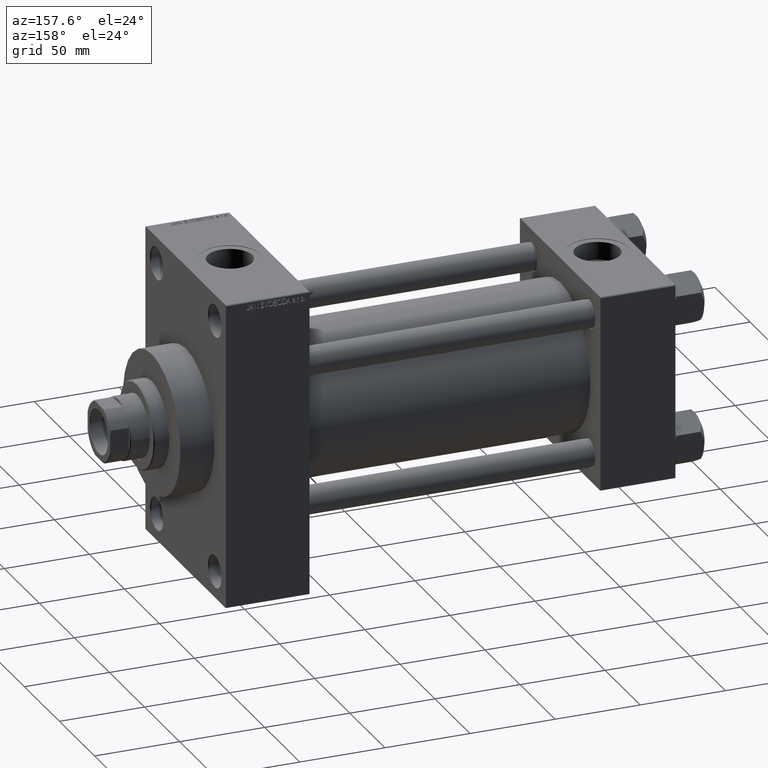
[diagram: clean part render]
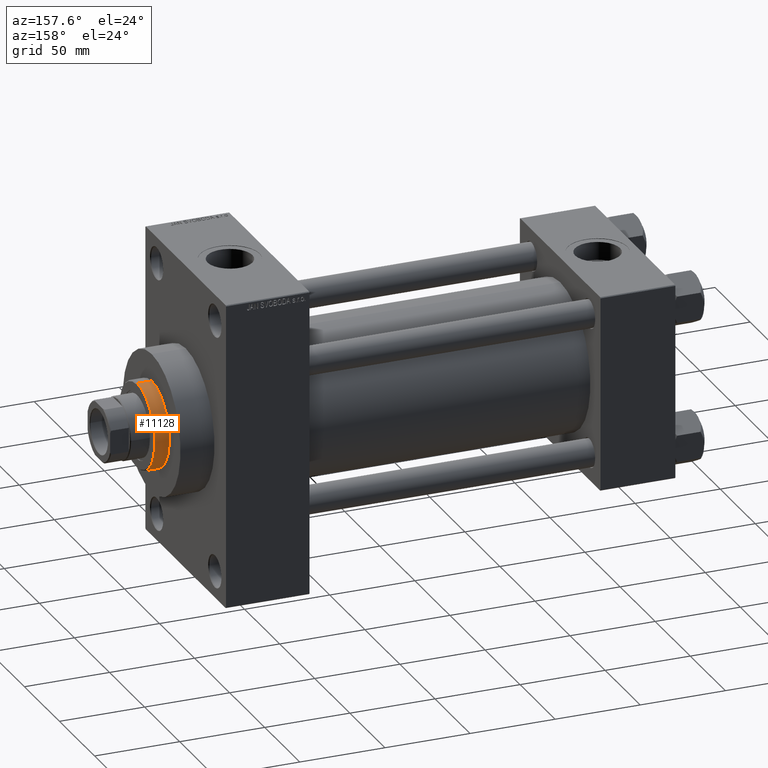
[diagram: same view with one face highlighted and labeled with its STEP entity id]
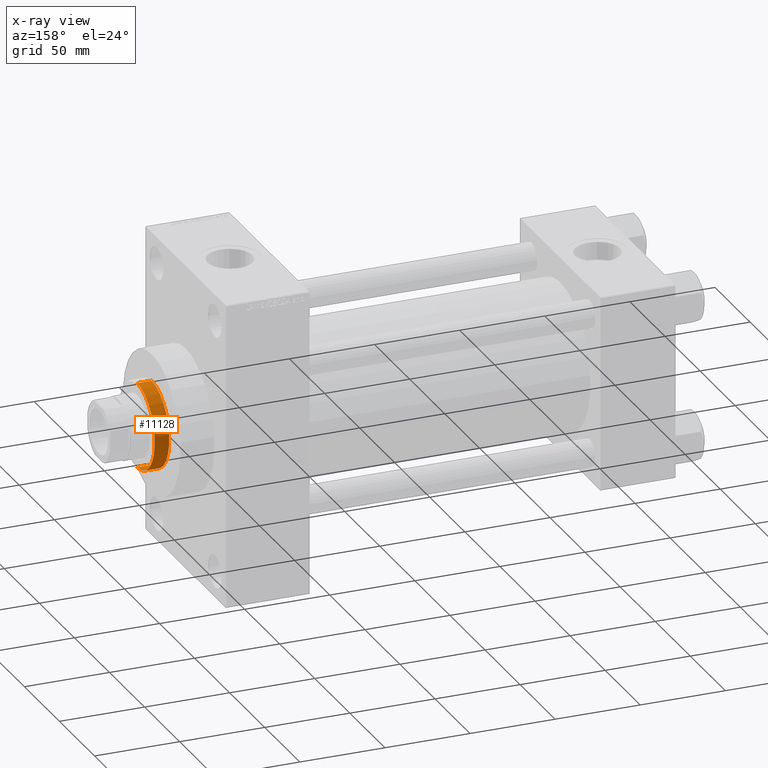
[diagram: x-ray of the same camera — body ghosted, the highlighted face saturated]
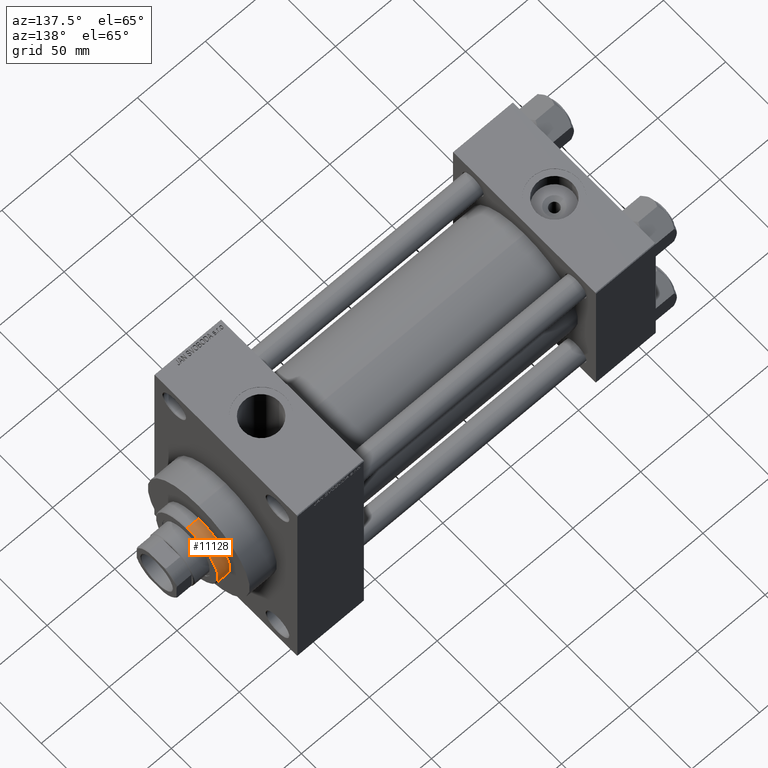
[diagram: same view with one face highlighted and labeled with its STEP entity id]
A machine part, auxiliary view. The second image highlights one B-rep face of the part: STEP entity #11128.
The next image is the same camera in x-ray: the body ghosted, the highlighted face saturated — about 0% of this face is hidden behind the body in this view.
A second angle (auxiliary view) of the same face is appended — the face is thin or edge-on in the first view.
In plain terms, the highlighted cylindrical surface (partial cylindrical patch) has radius 25 mm, axis along (-1, -0, 0).
Its self-contained STEP definition (entity closure, byte-faithful):
#588 = CIRCLE ( 'NONE', #20563, 25.00000000000000000 ) ;
#2933 = ORIENTED_EDGE ( 'NONE', *, *, #47333, .F. ) ;
#3210 = LINE ( 'NONE', #17908, #30436 ) ;
#6720 = ORIENTED_EDGE ( 'NONE', *, *, #29669, .T. ) ;
#8910 = DIRECTION ( 'NONE',  ( -1.000000000000000000, 0.000000000000000000, 0.000000000000000000 ) ) ;
#11128 = ADVANCED_FACE ( 'NONE', ( #34672 ), #16609, .T. ) ;
#13001 = CARTESIAN_POINT ( 'NONE',  ( 0.000000000000000000, 0.000000000000000000, 52.25999999999999801 ) ) ;
#14632 = VERTEX_POINT ( 'NONE', #21939 ) ;
#14867 = EDGE_CURVE ( 'NONE', #44598, #38715, #18652, .T. ) ;
#16609 = CYLINDRICAL_SURFACE ( 'NONE', #24834, 25.00000000000000000 ) ;
#17908 = CARTESIAN_POINT ( 'NONE',  ( 25.00000000000000000, 3.061616997868383043E-15, 52.25999999999999801 ) ) ;
#18478 = CARTESIAN_POINT ( 'NONE',  ( 0.000000000000000000, 0.000000000000000000, 51.75999999999996959 ) ) ;
#18652 = CIRCLE ( 'NONE', #45583, 25.00000000000000000 ) ;
#18739 = DIRECTION ( 'NONE',  ( 1.000000000000000000, 0.000000000000000000, 0.000000000000000000 ) ) ;
#20563 = AXIS2_PLACEMENT_3D ( 'NONE', #18478, #28833, #25236 ) ;
#21939 = CARTESIAN_POINT ( 'NONE',  ( 25.00000000000000000, 3.061616997868383043E-15, 51.75999999999996959 ) ) ;
#22558 = EDGE_CURVE ( 'NONE', #14632, #44598, #3210, .T. ) ;
#23577 = VECTOR ( 'NONE', #43885, 1000.000000000000000 ) ;
#24834 = AXIS2_PLACEMENT_3D ( 'NONE', #13001, #31298, #8910 ) ;
#25236 = DIRECTION ( 'NONE',  ( 1.000000000000000000, 0.000000000000000000, 0.000000000000000000 ) ) ;
#25568 = ORIENTED_EDGE ( 'NONE', *, *, #14867, .T. ) ;
#27088 = CARTESIAN_POINT ( 'NONE',  ( -25.00000000000000000, 0.000000000000000000, 51.75999999999996959 ) ) ;
#27688 = ORIENTED_EDGE ( 'NONE', *, *, #22558, .T. ) ;
#28833 = DIRECTION ( 'NONE',  ( 0.000000000000000000, 0.000000000000000000, -1.000000000000000000 ) ) ;
#29104 = DIRECTION ( 'NONE',  ( 0.000000000000000000, 0.000000000000000000, 1.000000000000000000 ) ) ;
#29669 = EDGE_CURVE ( 'NONE', #39715, #14632, #588, .T. ) ;
#29996 = CARTESIAN_POINT ( 'NONE',  ( -25.00000000000000000, 0.000000000000000000, 43.25999999999999801 ) ) ;
#30436 = VECTOR ( 'NONE', #32851, 1000.000000000000000 ) ;
#31298 = DIRECTION ( 'NONE',  ( -0.000000000000000000, -0.000000000000000000, -1.000000000000000000 ) ) ;
#32851 = DIRECTION ( 'NONE',  ( -0.000000000000000000, -0.000000000000000000, -1.000000000000000000 ) ) ;
#32958 = CARTESIAN_POINT ( 'NONE',  ( 0.000000000000000000, 0.000000000000000000, 43.25999999999999801 ) ) ;
#34672 = FACE_OUTER_BOUND ( 'NONE', #39984, .T. ) ;
#38715 = VERTEX_POINT ( 'NONE', #29996 ) ;
#39715 = VERTEX_POINT ( 'NONE', #27088 ) ;
#39984 = EDGE_LOOP ( 'NONE', ( #6720, #27688, #25568, #2933 ) ) ;
#40017 = CARTESIAN_POINT ( 'NONE',  ( -25.00000000000000000, 0.000000000000000000, 52.25999999999999801 ) ) ;
#40596 = CARTESIAN_POINT ( 'NONE',  ( 25.00000000000000000, 3.061616997868383043E-15, 43.25999999999999801 ) ) ;
#43648 = LINE ( 'NONE', #40017, #23577 ) ;
#43885 = DIRECTION ( 'NONE',  ( -0.000000000000000000, -0.000000000000000000, -1.000000000000000000 ) ) ;
#44598 = VERTEX_POINT ( 'NONE', #40596 ) ;
#45583 = AXIS2_PLACEMENT_3D ( 'NONE', #32958, #29104, #18739 ) ;
#47333 = EDGE_CURVE ( 'NONE', #39715, #38715, #43648, .T. ) ;